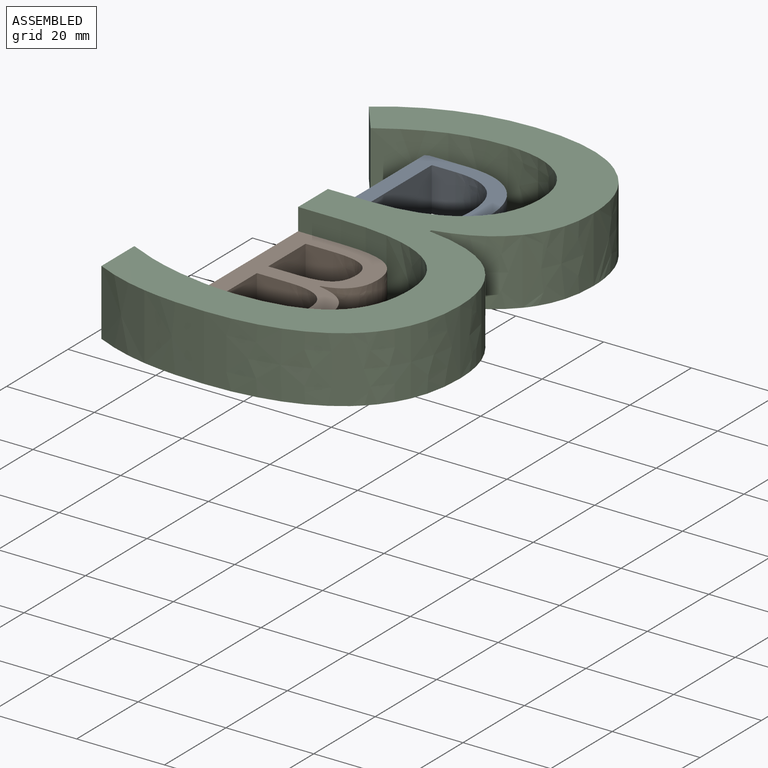
[diagram: assembled view]
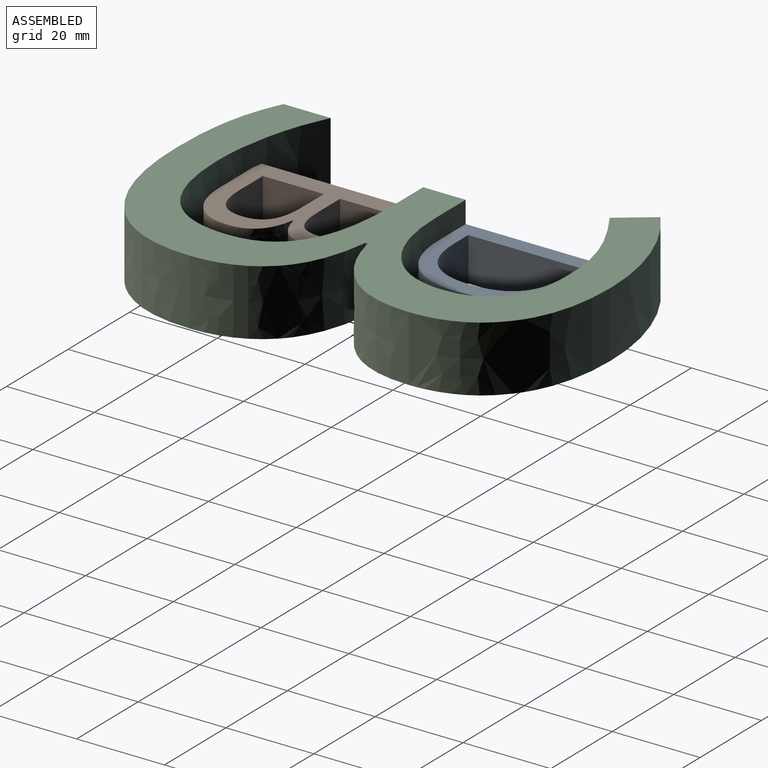
[diagram: assembled view, second angle]
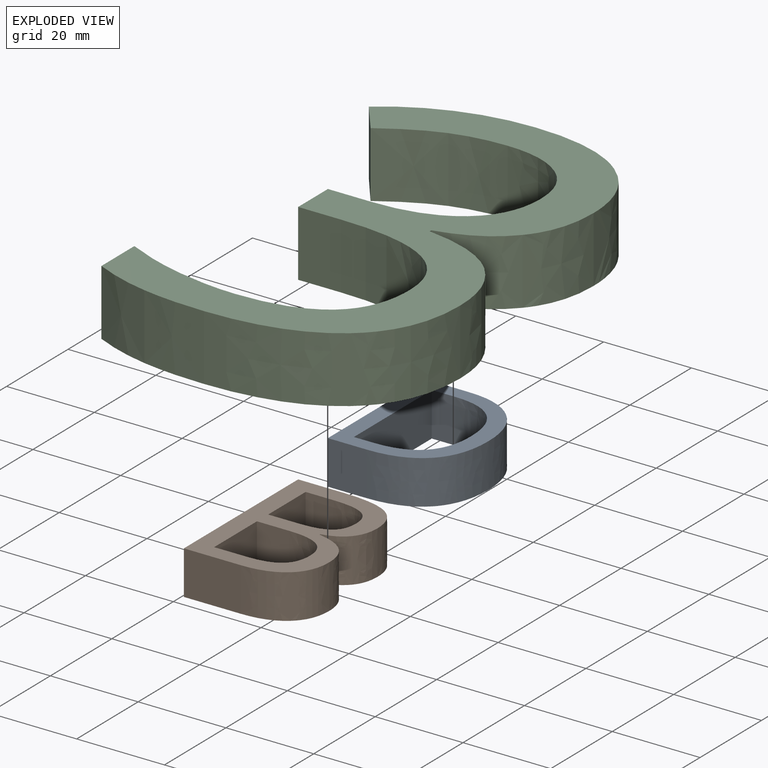
[diagram: exploded view]
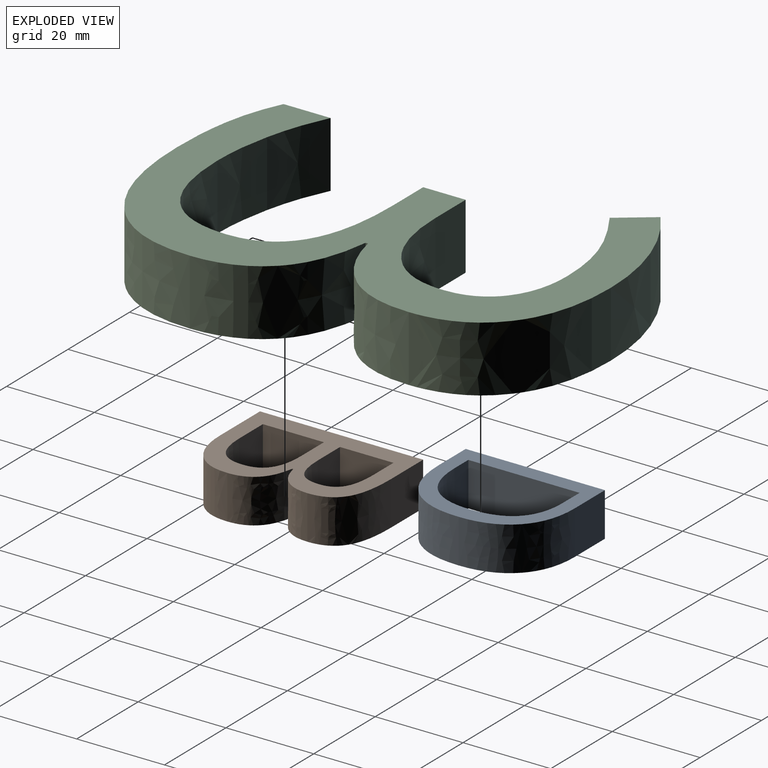
[diagram: exploded view, second angle]
ASSEMBLY  parts=3 mates=2
PART A: 16 faces, bbox 25.3x31.7x10 mm
  f0: extruded ~10x9.35mm, area 101.2mm2, adj f1,f13,f14,f15
  f1: extruded ~10x9.6mm, area 104.4mm2, adj f0,f2,f14,f15
  f2: extruded ~10x9.92mm, area 107.1mm2, adj f1,f3,f14,f15
  f3: plane 10x4.49mm, normal (0,1,0), area 44.9mm2, adj f2,f4,f14,f15
  f4: plane 25.35x10mm, normal (1,0,0), area 253.5mm2, adj f3,f5,f14,f15
  f5: plane 10x5.36mm, normal (0,-1,0), area 53.6mm2, adj f4,f13,f14,f15
  f6: extruded ~12.01x10mm, area 131mm2, adj f7,f12,f14,f15
  f7: extruded ~11.46x10mm, area 125.1mm2, adj f6,f8,f14,f15
  f8: extruded ~11.5x10mm, area 125.5mm2, adj f7,f9,f14,f15
  f9: plane 10x9.72mm, normal (0,1,0), area 97.2mm2, adj f8,f10,f14,f15
  f10: plane 31.73x10mm, normal (-1,0,0), area 317.3mm2, adj f9,f11,f14,f15
  f11: plane 10x8.79mm, normal (0,-1,0), area 87.9mm2, adj f10,f12,f14,f15
  f12: extruded ~12.27x10mm, area 132.9mm2, adj f6,f11,f14,f15
  f13: extruded ~10x9.26mm, area 100.5mm2, adj f0,f5,f14,f15
  f14: plane 31.73x25.33mm, normal (0,0,1), area 318.4mm2, adj f0,f1,f2,f3,f4,f5,f6,f7
  f15: plane 31.73x25.33mm, normal (0,0,-1), area 318.4mm2, adj f0,f1,f2,f3,f4,f5,f6,f7
PART B: 27 faces, bbox 25.8x37.2x10 mm
  f0: plane 13.92x10mm, normal (1,0,0), area 139.2mm2, adj f1,f24,f25,f26
  f1: plane 10x7.41mm, normal (0,-1,0), area 74.1mm2, adj f0,f2,f25,f26
  f2: extruded ~10x7.08mm, area 73.7mm2, adj f1,f3,f25,f26
  f3: extruded ~10x5.09mm, area 58.3mm2, adj f2,f4,f25,f26
  f4: extruded ~10x5.46mm, area 61.4mm2, adj f3,f5,f25,f26
  f5: extruded ~10x6.78mm, area 71.2mm2, adj f4,f24,f25,f26
  f6: plane 10x7.12mm, normal (0,1,0), area 71.2mm2, adj f7,f22,f25,f26
  f7: plane 12.17x10mm, normal (1,0,0), area 121.7mm2, adj f6,f8,f25,f26
  f8: plane 10x6.36mm, normal (0,-1,0), area 63.6mm2, adj f7,f9,f25,f26
  f9: extruded ~10x7.12mm, area 73.4mm2, adj f8,f10,f25,f26
  f10: extruded ~10x4.52mm, area 52.9mm2, adj f9,f11,f25,f26
  f11: extruded ~10x4.84mm, area 54.5mm2, adj f10,f22,f25,f26
  f12: plane 10.51x10mm, normal (0,1,0), area 105.1mm2, adj f13,f23,f25,f26
  f13: plane 37.18x10mm, normal (-1,0,0), area 371.8mm2, adj f12,f14,f25,f26
  f14: plane 12.97x10mm, normal (0,-1,0), area 129.7mm2, adj f13,f15,f25,f26
  f15: extruded ~10x9.42mm, area 100.3mm2, adj f14,f16,f25,f26
  f16: extruded ~10x7.78mm, area 87.8mm2, adj f15,f17,f25,f26
  f17: extruded ~10x8.9mm, area 136.1mm2, adj f16,f18,f25,f26
  f18: plane 10x0.25mm, normal (1,0,0), area 2.5mm2, adj f17,f19,f25,f26
  f19: extruded ~10x5.38mm, area 61.8mm2, adj f18,f20,f25,f26
  f20: extruded ~10x5.46mm, area 58.9mm2, adj f19,f21,f25,f26
  f21: extruded ~10x6.99mm, area 80.8mm2, adj f20,f23,f25,f26
  f22: extruded ~10x6.59mm, area 68.5mm2, adj f6,f11,f25,f26
  f23: extruded ~10.71x10mm, area 110.8mm2, adj f12,f21,f25,f26
  f24: plane 10x7.76mm, normal (0,1,0), area 77.6mm2, adj f0,f5,f25,f26
  f25: plane 37.18x25.77mm, normal (0,0,1), area 471.5mm2, adj f0,f1,f2,f3,f4,f5,f6,f7
  f26: plane 37.18x25.77mm, normal (0,0,-1), area 471.5mm2, adj f0,f1,f2,f3,f4,f5,f6,f7
PART C: 30 faces, bbox 64.9x101.9x15 mm
  f0: extruded ~15.54x15mm, area 252.1mm2, adj f1,f27,f28,f29
  f1: extruded ~18.13x15mm, area 307.9mm2, adj f0,f2,f28,f29
  f2: extruded ~22.44x15mm, area 358mm2, adj f1,f3,f28,f29
  f3: extruded ~16.8x15mm, area 256.5mm2, adj f2,f4,f28,f29
  f4: extruded ~15x14.06mm, area 240.7mm2, adj f3,f5,f28,f29
  f5: plane 15x7.6mm, normal (-0.8,-0.6,0), area 142.3mm2, adj f4,f6,f28,f29
  f6: extruded ~15x13.16mm, area 221mm2, adj f5,f7,f28,f29
  f7: extruded ~15x12.27mm, area 186.7mm2, adj f6,f8,f28,f29
  f8: extruded ~15x13.53mm, area 216.7mm2, adj f7,f9,f28,f29
  f9: extruded ~15x11.39mm, area 193.1mm2, adj f8,f10,f28,f29
  f10: extruded ~15x14.21mm, area 245.6mm2, adj f9,f11,f28,f29
  f11: extruded ~18.37x15mm, area 291.1mm2, adj f10,f12,f28,f29
  f12: plane 15x9.9mm, normal (0,1,0), area 148.4mm2, adj f11,f13,f28,f29
  f13: plane 15x9.68mm, normal (-1,0,0), area 145.2mm2, adj f12,f14,f28,f29
  f14: plane 15x9.77mm, normal (0,-1,0), area 146.5mm2, adj f13,f15,f28,f29
  f15: extruded ~28.34x18.06mm, area 570.3mm2, adj f14,f16,f28,f29
  f16: extruded ~25.69x20.14mm, area 559.6mm2, adj f15,f17,f28,f29
  f17: extruded ~15x13.8mm, area 209mm2, adj f16,f18,f28,f29
  f18: extruded ~15x13.74mm, area 219mm2, adj f17,f19,f28,f29
  f19: plane 15x10.72mm, normal (-1,0,0), area 160.8mm2, adj f18,f20,f28,f29
  f20: extruded ~15x12.71mm, area 201.2mm2, adj f19,f21,f28,f29
  f21: extruded ~15x14.42mm, area 217.3mm2, adj f20,f22,f28,f29
  f22: extruded ~27.93x15mm, area 442.3mm2, adj f21,f23,f28,f29
  f23: extruded ~21.81x15mm, area 372.6mm2, adj f22,f24,f28,f29
  f24: extruded ~16x15mm, area 261.6mm2, adj f23,f25,f28,f29
  f25: extruded ~17.7x15mm, area 294.7mm2, adj f24,f26,f28,f29
  f26: plane 15x0.54mm, normal (1,0,0), area 8.1mm2, adj f25,f27,f28,f29
  f27: extruded ~15.09x15mm, area 261.3mm2, adj f0,f26,f28,f29
  f28: plane 101.93x64.89mm, normal (0,0,1), area 2282.9mm2, adj f0,f1,f2,f3,f4,f5,f6,f7
  f29: plane 101.93x64.89mm, normal (0,0,-1), area 2282.9mm2, adj f0,f1,f2,f3,f4,f5,f6,f7
PLACE A t=(92.6,-49.53,-9)mm
PLACE B t=(86.57,-49.53,-9)mm
PLACE C t=(41.45,-49.6,-9)mm
MATE fastened A.f15 <-> C.f29  axis (0,0,1) through (-17.32,6.48,-9)mm
MATE fastened B.f26 <-> C.f29  axis (0,0,1) through (-17.32,-3.2,-9)mm
